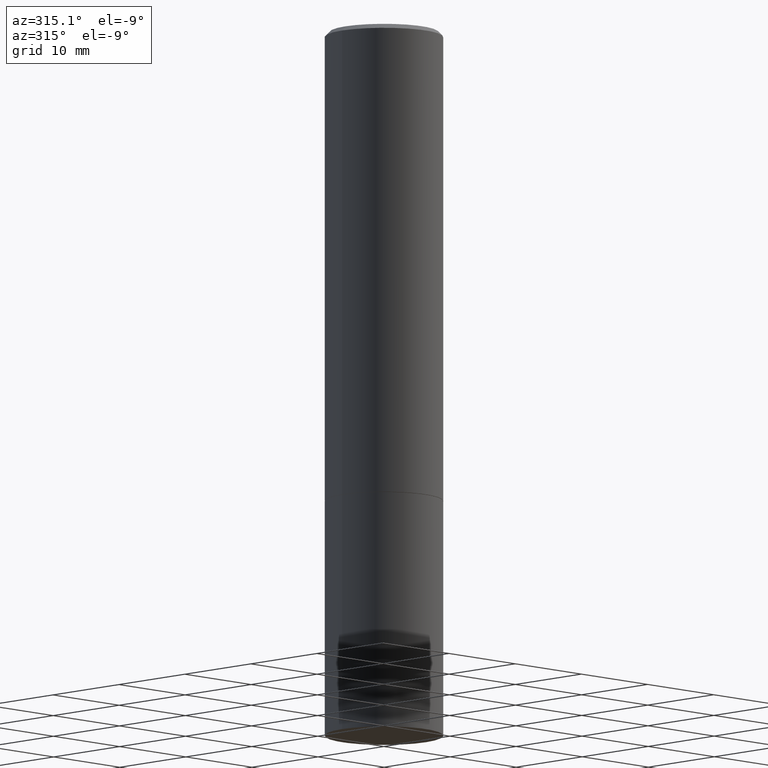
[diagram: clean part render]
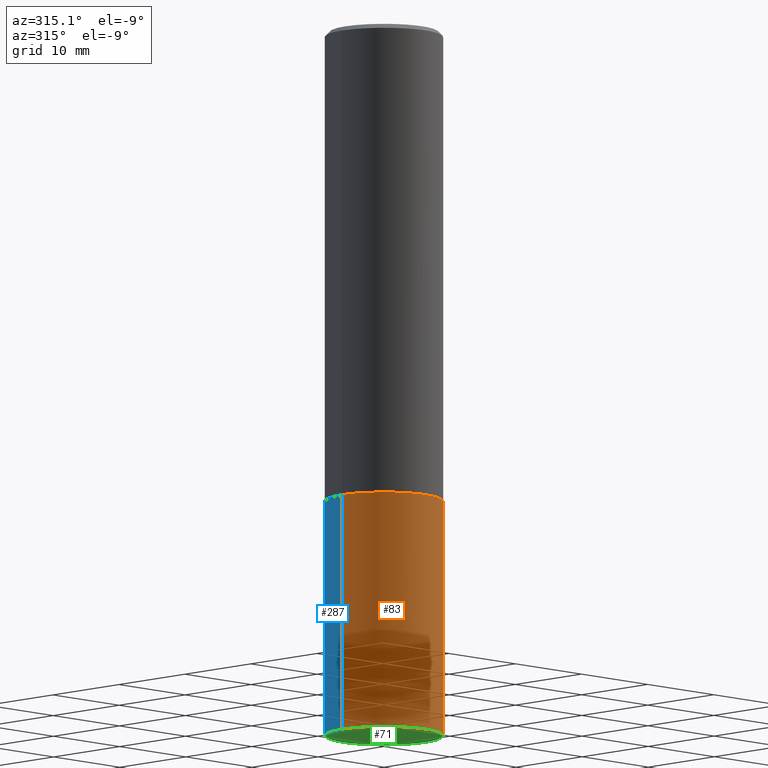
[diagram: same view with three faces highlighted in distinct colors, each labeled with its STEP entity id]
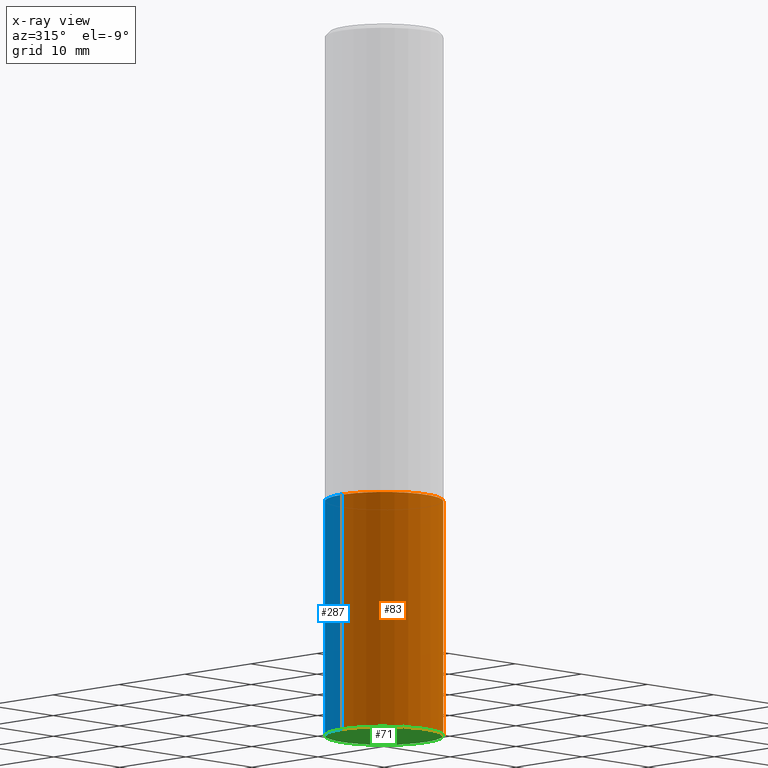
[diagram: x-ray of the same camera — body ghosted, the three highlighted faces saturated]
A machine part, auxiliary view with three faces highlighted in distinct colors.
The next image is the same camera in x-ray (body ghosted, the three faces saturated) — at least one of them is partly hidden behind the body in this view.
Their STEP definitions:

[orange] entity #83 — the highlighted cylindrical surface (partial cylindrical patch) has radius 6.35 mm, axis along (-0, 0, 1).
#15 = AXIS2_PLACEMENT_3D ( 'NONE', #357, #148, #123 ) ;
#20 = EDGE_CURVE ( 'NONE', #278, #284, #230, .T. ) ;
#28 = ORIENTED_EDGE ( 'NONE', *, *, #20, .F. ) ;
#29 = VERTEX_POINT ( 'NONE', #260 ) ;
#55 = CYLINDRICAL_SURFACE ( 'NONE', #172, 0.2500000000000000000 ) ;
#65 = VECTOR ( 'NONE', #92, 39.37007874015748143 ) ;
#67 = CARTESIAN_POINT ( 'NONE',  ( -0.2500000000000000000, -6.952346507707613689E-15, -2.000000000000000444 ) ) ;
#75 = DIRECTION ( 'NONE',  ( 1.000000000000000000, -6.982962677686262766E-15, 0.000000000000000000 ) ) ;
#81 = VERTEX_POINT ( 'NONE', #350 ) ;
#83 = ADVANCED_FACE ( 'NONE', ( #146 ), #55, .T. ) ;
#92 = DIRECTION ( 'NONE',  ( -2.445468806185136877E-29, 3.491481338843145188E-15, 1.000000000000000000 ) ) ;
#100 = LINE ( 'NONE', #244, #225 ) ;
#102 = AXIS2_PLACEMENT_3D ( 'NONE', #242, #335, #75 ) ;
#110 = EDGE_LOOP ( 'NONE', ( #199, #227, #258, #28 ) ) ;
#123 = DIRECTION ( 'NONE',  ( 1.000000000000000000, -6.982962677686266711E-15, 0.000000000000000000 ) ) ;
#146 = FACE_OUTER_BOUND ( 'NONE', #110, .T. ) ;
#148 = DIRECTION ( 'NONE',  ( -2.445468806185136597E-29, 3.491481338843145583E-15, 1.000000000000000000 ) ) ;
#171 = CARTESIAN_POINT ( 'NONE',  ( 0.000000000000000000, 0.000000000000000000, 0.000000000000000000 ) ) ;
#172 = AXIS2_PLACEMENT_3D ( 'NONE', #171, #262, #319 ) ;
#184 = LINE ( 'NONE', #301, #65 ) ;
#199 = ORIENTED_EDGE ( 'NONE', *, *, #233, .F. ) ;
#225 = VECTOR ( 'NONE', #362, 39.37007874015748143 ) ;
#227 = ORIENTED_EDGE ( 'NONE', *, *, #228, .T. ) ;
#228 = EDGE_CURVE ( 'NONE', #29, #81, #272, .T. ) ;
#230 = CIRCLE ( 'NONE', #15, 0.2500000000000000000 ) ;
#233 = EDGE_CURVE ( 'NONE', #29, #278, #100, .T. ) ;
#239 = CARTESIAN_POINT ( 'NONE',  ( 0.2500000000000000000, -8.728703347107858632E-15, -2.000000000000000444 ) ) ;
#242 = CARTESIAN_POINT ( 'NONE',  ( 7.336406418555409790E-29, -1.047444401652943635E-14, -3.000000000000000444 ) ) ;
#244 = CARTESIAN_POINT ( 'NONE',  ( -0.2500000000000000000, 1.776356839400250465E-15, -1.229733772563726445E-29 ) ) ;
#258 = ORIENTED_EDGE ( 'NONE', *, *, #281, .T. ) ;
#260 = CARTESIAN_POINT ( 'NONE',  ( -0.2500000000000000000, -6.952346507707613689E-15, -3.000000000000000444 ) ) ;
#262 = DIRECTION ( 'NONE',  ( -2.445468806185136597E-29, 3.491481338843145583E-15, 1.000000000000000000 ) ) ;
#272 = CIRCLE ( 'NONE', #102, 0.2500000000000000000 ) ;
#278 = VERTEX_POINT ( 'NONE', #67 ) ;
#281 = EDGE_CURVE ( 'NONE', #81, #284, #184, .T. ) ;
#284 = VERTEX_POINT ( 'NONE', #239 ) ;
#301 = CARTESIAN_POINT ( 'NONE',  ( 0.2500000000000000000, -1.745740669421566678E-15, 1.219044193948983948E-29 ) ) ;
#319 = DIRECTION ( 'NONE',  ( 1.000000000000000000, -6.982962677686266711E-15, 4.876176775795935793E-29 ) ) ;
#335 = DIRECTION ( 'NONE',  ( -2.445468806185136597E-29, 3.491481338843145583E-15, 1.000000000000000000 ) ) ;
#350 = CARTESIAN_POINT ( 'NONE',  ( 0.2500000000000000000, -1.222018468595100303E-14, -3.000000000000000444 ) ) ;
#357 = CARTESIAN_POINT ( 'NONE',  ( 4.890937612370273754E-29, -6.982962677686291954E-15, -2.000000000000000444 ) ) ;
#362 = DIRECTION ( 'NONE',  ( -2.445468806185136877E-29, 3.491481338843145188E-15, 1.000000000000000000 ) ) ;

[blue] entity #287 — the highlighted cylindrical surface (partial cylindrical patch) has radius 6.35 mm, axis along (-0, 0, 1).
#21 = ORIENTED_EDGE ( 'NONE', *, *, #291, .T. ) ;
#29 = VERTEX_POINT ( 'NONE', #260 ) ;
#51 = EDGE_LOOP ( 'NONE', ( #21, #115, #343, #313 ) ) ;
#65 = VECTOR ( 'NONE', #92, 39.37007874015748143 ) ;
#67 = CARTESIAN_POINT ( 'NONE',  ( -0.2500000000000000000, -6.952346507707613689E-15, -2.000000000000000444 ) ) ;
#81 = VERTEX_POINT ( 'NONE', #350 ) ;
#92 = DIRECTION ( 'NONE',  ( -2.445468806185136877E-29, 3.491481338843145188E-15, 1.000000000000000000 ) ) ;
#100 = LINE ( 'NONE', #244, #225 ) ;
#108 = CIRCLE ( 'NONE', #154, 0.2500000000000000000 ) ;
#109 = AXIS2_PLACEMENT_3D ( 'NONE', #358, #209, #120 ) ;
#115 = ORIENTED_EDGE ( 'NONE', *, *, #233, .T. ) ;
#117 = DIRECTION ( 'NONE',  ( 1.000000000000000000, -6.982962677686266711E-15, 4.876176775795935793E-29 ) ) ;
#120 = DIRECTION ( 'NONE',  ( 1.000000000000000000, -6.982962677686262766E-15, 0.000000000000000000 ) ) ;
#149 = EDGE_CURVE ( 'NONE', #284, #278, #108, .T. ) ;
#151 = DIRECTION ( 'NONE',  ( -2.445468806185136597E-29, 3.491481338843145583E-15, 1.000000000000000000 ) ) ;
#154 = AXIS2_PLACEMENT_3D ( 'NONE', #186, #245, #304 ) ;
#184 = LINE ( 'NONE', #301, #65 ) ;
#186 = CARTESIAN_POINT ( 'NONE',  ( 4.890937612370273754E-29, -6.982962677686291954E-15, -2.000000000000000444 ) ) ;
#209 = DIRECTION ( 'NONE',  ( -2.445468806185136597E-29, 3.491481338843145583E-15, 1.000000000000000000 ) ) ;
#218 = CIRCLE ( 'NONE', #109, 0.2500000000000000000 ) ;
#225 = VECTOR ( 'NONE', #362, 39.37007874015748143 ) ;
#233 = EDGE_CURVE ( 'NONE', #29, #278, #100, .T. ) ;
#239 = CARTESIAN_POINT ( 'NONE',  ( 0.2500000000000000000, -8.728703347107858632E-15, -2.000000000000000444 ) ) ;
#244 = CARTESIAN_POINT ( 'NONE',  ( -0.2500000000000000000, 1.776356839400250465E-15, -1.229733772563726445E-29 ) ) ;
#245 = DIRECTION ( 'NONE',  ( -2.445468806185136597E-29, 3.491481338843145583E-15, 1.000000000000000000 ) ) ;
#260 = CARTESIAN_POINT ( 'NONE',  ( -0.2500000000000000000, -6.952346507707613689E-15, -3.000000000000000444 ) ) ;
#266 = CYLINDRICAL_SURFACE ( 'NONE', #349, 0.2500000000000000000 ) ;
#270 = CARTESIAN_POINT ( 'NONE',  ( 0.000000000000000000, 0.000000000000000000, 0.000000000000000000 ) ) ;
#278 = VERTEX_POINT ( 'NONE', #67 ) ;
#281 = EDGE_CURVE ( 'NONE', #81, #284, #184, .T. ) ;
#284 = VERTEX_POINT ( 'NONE', #239 ) ;
#287 = ADVANCED_FACE ( 'NONE', ( #296 ), #266, .T. ) ;
#291 = EDGE_CURVE ( 'NONE', #81, #29, #218, .T. ) ;
#296 = FACE_OUTER_BOUND ( 'NONE', #51, .T. ) ;
#301 = CARTESIAN_POINT ( 'NONE',  ( 0.2500000000000000000, -1.745740669421566678E-15, 1.219044193948983948E-29 ) ) ;
#304 = DIRECTION ( 'NONE',  ( 1.000000000000000000, -6.982962677686266711E-15, 0.000000000000000000 ) ) ;
#313 = ORIENTED_EDGE ( 'NONE', *, *, #281, .F. ) ;
#343 = ORIENTED_EDGE ( 'NONE', *, *, #149, .F. ) ;
#349 = AXIS2_PLACEMENT_3D ( 'NONE', #270, #151, #117 ) ;
#350 = CARTESIAN_POINT ( 'NONE',  ( 0.2500000000000000000, -1.222018468595100303E-14, -3.000000000000000444 ) ) ;
#358 = CARTESIAN_POINT ( 'NONE',  ( 7.336406418555409790E-29, -1.047444401652943635E-14, -3.000000000000000444 ) ) ;
#362 = DIRECTION ( 'NONE',  ( -2.445468806185136877E-29, 3.491481338843145188E-15, 1.000000000000000000 ) ) ;

[green] entity #71 — the highlighted planar face has unit normal (0, -0, -1).
#7 = ORIENTED_EDGE ( 'NONE', *, *, #291, .F. ) ;
#23 = EDGE_LOOP ( 'NONE', ( #7, #143 ) ) ;
#29 = VERTEX_POINT ( 'NONE', #260 ) ;
#71 = ADVANCED_FACE ( 'NONE', ( #122 ), #352, .T. ) ;
#75 = DIRECTION ( 'NONE',  ( 1.000000000000000000, -6.982962677686262766E-15, 0.000000000000000000 ) ) ;
#81 = VERTEX_POINT ( 'NONE', #350 ) ;
#102 = AXIS2_PLACEMENT_3D ( 'NONE', #242, #335, #75 ) ;
#109 = AXIS2_PLACEMENT_3D ( 'NONE', #358, #209, #120 ) ;
#120 = DIRECTION ( 'NONE',  ( 1.000000000000000000, -6.982962677686262766E-15, 0.000000000000000000 ) ) ;
#122 = FACE_OUTER_BOUND ( 'NONE', #23, .T. ) ;
#143 = ORIENTED_EDGE ( 'NONE', *, *, #228, .F. ) ;
#209 = DIRECTION ( 'NONE',  ( -2.445468806185136597E-29, 3.491481338843145583E-15, 1.000000000000000000 ) ) ;
#211 = CARTESIAN_POINT ( 'NONE',  ( 1.745740669421639647E-15, 0.2499999999999895084, -3.000000000000001332 ) ) ;
#218 = CIRCLE ( 'NONE', #109, 0.2500000000000000000 ) ;
#228 = EDGE_CURVE ( 'NONE', #29, #81, #272, .T. ) ;
#238 = DIRECTION ( 'NONE',  ( 2.438088387897960049E-29, -3.491481338843145188E-15, -1.000000000000000000 ) ) ;
#242 = CARTESIAN_POINT ( 'NONE',  ( 7.336406418555409790E-29, -1.047444401652943635E-14, -3.000000000000000444 ) ) ;
#260 = CARTESIAN_POINT ( 'NONE',  ( -0.2500000000000000000, -6.952346507707613689E-15, -3.000000000000000444 ) ) ;
#264 = AXIS2_PLACEMENT_3D ( 'NONE', #211, #238, #325 ) ;
#272 = CIRCLE ( 'NONE', #102, 0.2500000000000000000 ) ;
#291 = EDGE_CURVE ( 'NONE', #81, #29, #218, .T. ) ;
#325 = DIRECTION ( 'NONE',  ( -1.000000000000000000, 6.982962677686265922E-15, -4.876176775795935793E-29 ) ) ;
#335 = DIRECTION ( 'NONE',  ( -2.445468806185136597E-29, 3.491481338843145583E-15, 1.000000000000000000 ) ) ;
#350 = CARTESIAN_POINT ( 'NONE',  ( 0.2500000000000000000, -1.222018468595100303E-14, -3.000000000000000444 ) ) ;
#352 = PLANE ( 'NONE',  #264 ) ;
#358 = CARTESIAN_POINT ( 'NONE',  ( 7.336406418555409790E-29, -1.047444401652943635E-14, -3.000000000000000444 ) ) ;